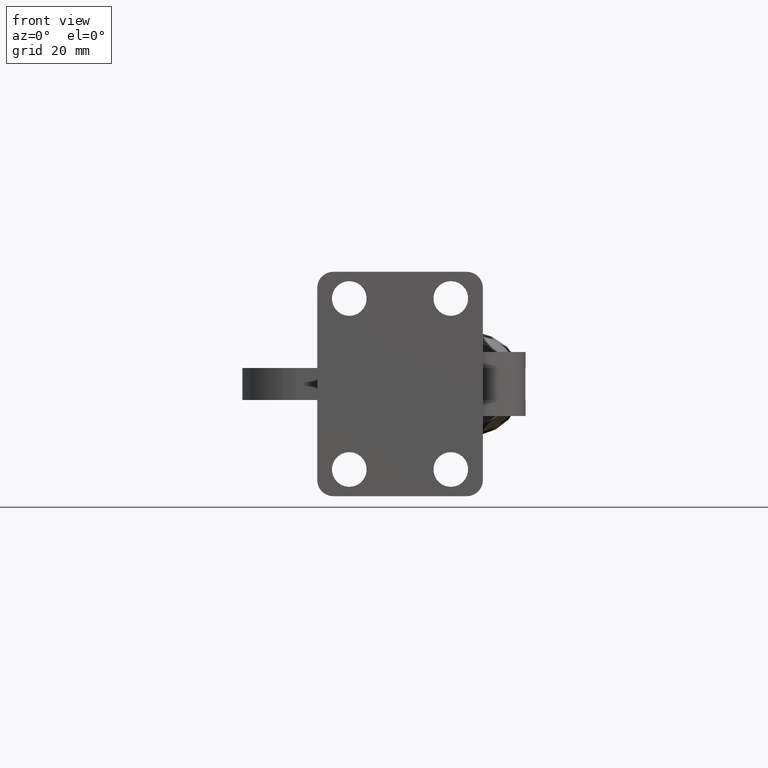
[diagram: clean part render]
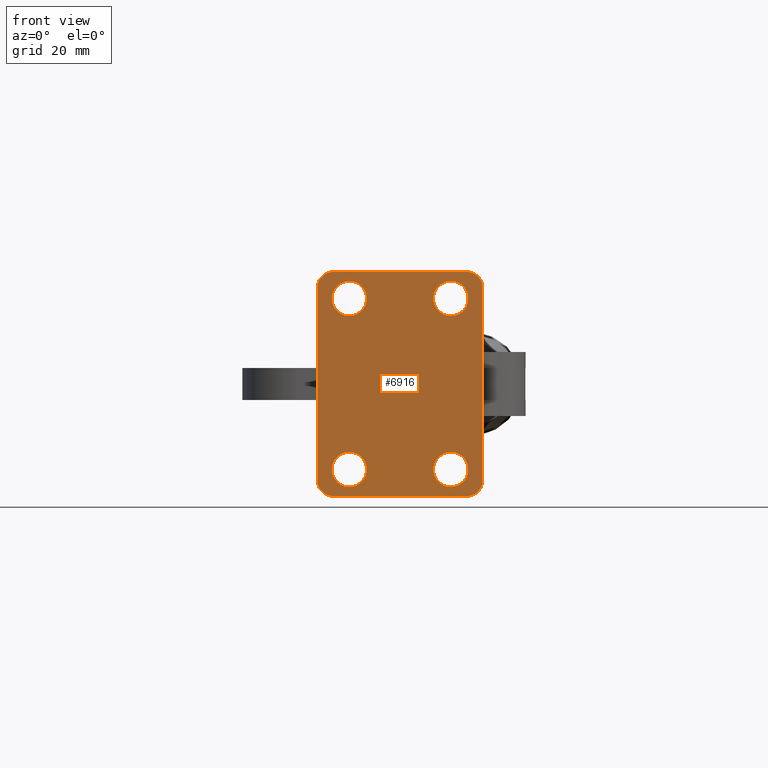
[diagram: same view with one face highlighted and labeled with its STEP entity id]
A machine part, front view. The second image highlights one B-rep face of the part: STEP entity #6916.
In plain terms, the highlighted planar face has unit normal (0, 1, 0).
Its self-contained STEP definition (entity closure, byte-faithful):
#56 = VERTEX_POINT ( 'NONE', #3336 ) ;
#85 = EDGE_CURVE ( 'NONE', #5143, #4911, #1470, .T. ) ;
#91 = VECTOR ( 'NONE', #2775, 1000.000000000000000 ) ;
#110 = DIRECTION ( 'NONE',  ( 0.0000000000000000000, 1.000000000000000000, 0.0000000000000000000 ) ) ;
#118 = DIRECTION ( 'NONE',  ( 1.156482317317871700E-015, 0.0000000000000000000, 1.000000000000000000 ) ) ;
#252 = CARTESIAN_POINT ( 'NONE',  ( 13.00000000000006000, -13.00000000000009900, 21.00000000000000000 ) ) ;
#363 = EDGE_CURVE ( 'NONE', #1163, #6819, #8662, .T. ) ;
#669 = DIRECTION ( 'NONE',  ( 0.0000000000000000000, 1.000000000000000000, 0.0000000000000000000 ) ) ;
#670 = AXIS2_PLACEMENT_3D ( 'NONE', #6953, #2791, #7660 ) ;
#677 = DIRECTION ( 'NONE',  ( -0.0000000000000000000, -1.000000000000000000, -0.0000000000000000000 ) ) ;
#707 = CARTESIAN_POINT ( 'NONE',  ( -8.999999999999939600, -13.00000000000009900, -16.00000000000000000 ) ) ;
#790 = EDGE_CURVE ( 'NONE', #6478, #2843, #7220, .T. ) ;
#885 = FACE_OUTER_BOUND ( 'NONE', #1181, .T. ) ;
#1057 = EDGE_LOOP ( 'NONE', ( #2701, #6779 ) ) ;
#1163 = VERTEX_POINT ( 'NONE', #5864 ) ;
#1179 = ORIENTED_EDGE ( 'NONE', *, *, #4549, .T. ) ;
#1181 = EDGE_LOOP ( 'NONE', ( #7128, #5176, #8734, #5641, #7429, #6761, #5778, #1556 ) ) ;
#1193 = DIRECTION ( 'NONE',  ( 0.0000000000000000000, 1.000000000000000000, 0.0000000000000000000 ) ) ;
#1237 = DIRECTION ( 'NONE',  ( 0.0000000000000000000, 1.000000000000000000, 0.0000000000000000000 ) ) ;
#1252 = EDGE_LOOP ( 'NONE', ( #2189, #1179 ) ) ;
#1278 = VECTOR ( 'NONE', #2884, 1000.000000000000000 ) ;
#1422 = DIRECTION ( 'NONE',  ( 0.0000000000000000000, 0.0000000000000000000, 1.000000000000000000 ) ) ;
#1470 = CIRCLE ( 'NONE', #5904, 3.249999999999999600 ) ;
#1508 = VERTEX_POINT ( 'NONE', #8281 ) ;
#1556 = ORIENTED_EDGE ( 'NONE', *, *, #6621, .T. ) ;
#1735 = CARTESIAN_POINT ( 'NONE',  ( 10.00000000000005900, -13.00000000000009900, 12.75000000000000200 ) ) ;
#1861 = CARTESIAN_POINT ( 'NONE',  ( -8.999999999999939600, -13.00000000000009900, 19.25000000000000000 ) ) ;
#1997 = CARTESIAN_POINT ( 'NONE',  ( 10.00000000000005900, -13.00000000000009900, 16.00000000000000000 ) ) ;
#2046 = CARTESIAN_POINT ( 'NONE',  ( -14.99999999999994000, -13.00000000000009900, -20.99999999999998900 ) ) ;
#2189 = ORIENTED_EDGE ( 'NONE', *, *, #363, .T. ) ;
#2229 = VERTEX_POINT ( 'NONE', #7188 ) ;
#2238 = VECTOR ( 'NONE', #7291, 1000.000000000000000 ) ;
#2261 = VERTEX_POINT ( 'NONE', #4530 ) ;
#2429 = AXIS2_PLACEMENT_3D ( 'NONE', #4866, #669, #5570 ) ;
#2482 = EDGE_CURVE ( 'NONE', #5542, #4430, #2608, .T. ) ;
#2604 = EDGE_CURVE ( 'NONE', #7831, #2229, #5682, .T. ) ;
#2608 = CIRCLE ( 'NONE', #5979, 3.249999999999999600 ) ;
#2654 = EDGE_CURVE ( 'NONE', #56, #6006, #7495, .T. ) ;
#2700 = DIRECTION ( 'NONE',  ( 0.0000000000000000000, 0.0000000000000000000, 1.000000000000000000 ) ) ;
#2701 = ORIENTED_EDGE ( 'NONE', *, *, #7433, .T. ) ;
#2744 = FACE_BOUND ( 'NONE', #3917, .T. ) ;
#2775 = DIRECTION ( 'NONE',  ( -0.0000000000000000000, -0.0000000000000000000, -1.000000000000000000 ) ) ;
#2791 = DIRECTION ( 'NONE',  ( 0.0000000000000000000, 1.000000000000000000, 0.0000000000000000000 ) ) ;
#2843 = VERTEX_POINT ( 'NONE', #252 ) ;
#2884 = DIRECTION ( 'NONE',  ( -1.000000000000000000, -0.0000000000000000000, -0.0000000000000000000 ) ) ;
#3035 = DIRECTION ( 'NONE',  ( -0.0000000000000000000, -1.000000000000000000, -0.0000000000000000000 ) ) ;
#3103 = CARTESIAN_POINT ( 'NONE',  ( -8.999999999999939600, -13.00000000000009900, -19.25000000000000000 ) ) ;
#3253 = ORIENTED_EDGE ( 'NONE', *, *, #8872, .T. ) ;
#3291 = CIRCLE ( 'NONE', #6112, 2.999999999999999100 ) ;
#3336 = CARTESIAN_POINT ( 'NONE',  ( -14.99999999999994000, -13.00000000000009900, 18.00000000000000400 ) ) ;
#3389 = CARTESIAN_POINT ( 'NONE',  ( 10.00000000000005900, -13.00000000000009900, 16.00000000000000000 ) ) ;
#3525 = CARTESIAN_POINT ( 'NONE',  ( -11.99999999999994100, -13.00000000000009900, -18.00000000000000400 ) ) ;
#3643 = EDGE_CURVE ( 'NONE', #2843, #2261, #3794, .T. ) ;
#3794 = LINE ( 'NONE', #6365, #1278 ) ;
#3811 = VECTOR ( 'NONE', #6932, 1000.000000000000000 ) ;
#3812 = AXIS2_PLACEMENT_3D ( 'NONE', #3992, #8886, #4706 ) ;
#3829 = ORIENTED_EDGE ( 'NONE', *, *, #7028, .T. ) ;
#3845 = CARTESIAN_POINT ( 'NONE',  ( -8.999999999999939600, -13.00000000000009900, 12.75000000000000200 ) ) ;
#3917 = EDGE_LOOP ( 'NONE', ( #4826, #3253 ) ) ;
#3992 = CARTESIAN_POINT ( 'NONE',  ( 10.00000000000005900, -13.00000000000009900, -16.00000000000000000 ) ) ;
#4095 = DIRECTION ( 'NONE',  ( 0.0000000000000000000, 0.0000000000000000000, 1.000000000000000000 ) ) ;
#4228 = DIRECTION ( 'NONE',  ( 0.0000000000000000000, 0.0000000000000000000, 1.000000000000000000 ) ) ;
#4301 = CARTESIAN_POINT ( 'NONE',  ( -8.999999999999939600, -13.00000000000009900, 16.00000000000000000 ) ) ;
#4342 = ORIENTED_EDGE ( 'NONE', *, *, #85, .T. ) ;
#4410 = AXIS2_PLACEMENT_3D ( 'NONE', #4301, #110, #5006 ) ;
#4430 = VERTEX_POINT ( 'NONE', #1735 ) ;
#4435 = EDGE_CURVE ( 'NONE', #1508, #6478, #7573, .T. ) ;
#4497 = CIRCLE ( 'NONE', #6235, 3.249999999999999600 ) ;
#4511 = AXIS2_PLACEMENT_3D ( 'NONE', #1997, #6858, #2700 ) ;
#4530 = CARTESIAN_POINT ( 'NONE',  ( -11.99999999999994100, -13.00000000000009900, 21.00000000000000000 ) ) ;
#4544 = CIRCLE ( 'NONE', #4410, 3.249999999999999600 ) ;
#4549 = EDGE_CURVE ( 'NONE', #6819, #1163, #7132, .T. ) ;
#4611 = FACE_BOUND ( 'NONE', #1252, .T. ) ;
#4706 = DIRECTION ( 'NONE',  ( 0.0000000000000000000, 0.0000000000000000000, 1.000000000000000000 ) ) ;
#4826 = ORIENTED_EDGE ( 'NONE', *, *, #2482, .T. ) ;
#4866 = CARTESIAN_POINT ( 'NONE',  ( -8.999999999999939600, -13.00000000000009900, 16.00000000000000000 ) ) ;
#4872 = CARTESIAN_POINT ( 'NONE',  ( 13.00000000000006200, -13.00000000000009900, -18.00000000000000400 ) ) ;
#4911 = VERTEX_POINT ( 'NONE', #8975 ) ;
#5006 = DIRECTION ( 'NONE',  ( 0.0000000000000000000, 0.0000000000000000000, 1.000000000000000000 ) ) ;
#5059 = EDGE_CURVE ( 'NONE', #8021, #8115, #4544, .T. ) ;
#5060 = CARTESIAN_POINT ( 'NONE',  ( 10.00000000000005900, -13.00000000000009900, -19.25000000000000400 ) ) ;
#5120 = AXIS2_PLACEMENT_3D ( 'NONE', #7200, #3035, #7911 ) ;
#5143 = VERTEX_POINT ( 'NONE', #3103 ) ;
#5176 = ORIENTED_EDGE ( 'NONE', *, *, #790, .T. ) ;
#5387 = DIRECTION ( 'NONE',  ( 0.0000000000000000000, 0.0000000000000000000, 1.000000000000000000 ) ) ;
#5500 = EDGE_LOOP ( 'NONE', ( #3829, #4342 ) ) ;
#5506 = CARTESIAN_POINT ( 'NONE',  ( -11.99999999999994100, -13.00000000000009900, -20.99999999999998900 ) ) ;
#5542 = VERTEX_POINT ( 'NONE', #7133 ) ;
#5570 = DIRECTION ( 'NONE',  ( 0.0000000000000000000, 0.0000000000000000000, 1.000000000000000000 ) ) ;
#5577 = DIRECTION ( 'NONE',  ( 0.0000000000000000000, 0.0000000000000000000, 1.000000000000000000 ) ) ;
#5614 = DIRECTION ( 'NONE',  ( 0.0000000000000000000, 1.000000000000000000, 0.0000000000000000000 ) ) ;
#5641 = ORIENTED_EDGE ( 'NONE', *, *, #7194, .T. ) ;
#5682 = LINE ( 'NONE', #2046, #3811 ) ;
#5778 = ORIENTED_EDGE ( 'NONE', *, *, #2604, .T. ) ;
#5864 = CARTESIAN_POINT ( 'NONE',  ( 10.00000000000005900, -13.00000000000009900, -12.74999999999999800 ) ) ;
#5904 = AXIS2_PLACEMENT_3D ( 'NONE', #6088, #1193, #5387 ) ;
#5979 = AXIS2_PLACEMENT_3D ( 'NONE', #3389, #8261, #4095 ) ;
#6006 = VERTEX_POINT ( 'NONE', #7547 ) ;
#6088 = CARTESIAN_POINT ( 'NONE',  ( -8.999999999999939600, -13.00000000000009900, -16.00000000000000000 ) ) ;
#6112 = AXIS2_PLACEMENT_3D ( 'NONE', #4872, #677, #5577 ) ;
#6137 = DIRECTION ( 'NONE',  ( 0.0000000000000000000, 0.0000000000000000000, 1.000000000000000000 ) ) ;
#6140 = CIRCLE ( 'NONE', #8440, 2.999999999999999100 ) ;
#6235 = AXIS2_PLACEMENT_3D ( 'NONE', #707, #5614, #1422 ) ;
#6365 = CARTESIAN_POINT ( 'NONE',  ( -14.99999999999994000, -13.00000000000009900, 21.00000000000000000 ) ) ;
#6453 = FACE_BOUND ( 'NONE', #1057, .T. ) ;
#6478 = VERTEX_POINT ( 'NONE', #8163 ) ;
#6525 = CIRCLE ( 'NONE', #4511, 3.249999999999999600 ) ;
#6601 = CARTESIAN_POINT ( 'NONE',  ( 16.00000000000005300, -13.00000000000009900, -20.99999999999998900 ) ) ;
#6621 = EDGE_CURVE ( 'NONE', #2229, #1508, #3291, .T. ) ;
#6644 = CIRCLE ( 'NONE', #5120, 2.999999999999999100 ) ;
#6670 = EDGE_CURVE ( 'NONE', #6006, #7831, #6140, .T. ) ;
#6761 = ORIENTED_EDGE ( 'NONE', *, *, #6670, .T. ) ;
#6778 = CARTESIAN_POINT ( 'NONE',  ( -12.99999999999994000, -13.00000000000009900, -19.00000000000000000 ) ) ;
#6779 = ORIENTED_EDGE ( 'NONE', *, *, #5059, .T. ) ;
#6819 = VERTEX_POINT ( 'NONE', #5060 ) ;
#6858 = DIRECTION ( 'NONE',  ( 0.0000000000000000000, 1.000000000000000000, 0.0000000000000000000 ) ) ;
#6916 = ADVANCED_FACE ( 'NONE', ( #8528, #2744, #6453, #4611, #885 ), #8202, .F. ) ;
#6932 = DIRECTION ( 'NONE',  ( 1.000000000000000000, 0.0000000000000000000, 0.0000000000000000000 ) ) ;
#6953 = CARTESIAN_POINT ( 'NONE',  ( 10.00000000000005900, -13.00000000000009900, -16.00000000000000000 ) ) ;
#7028 = EDGE_CURVE ( 'NONE', #4911, #5143, #4497, .T. ) ;
#7128 = ORIENTED_EDGE ( 'NONE', *, *, #4435, .T. ) ;
#7132 = CIRCLE ( 'NONE', #3812, 3.250000000000002700 ) ;
#7133 = CARTESIAN_POINT ( 'NONE',  ( 10.00000000000005900, -13.00000000000009900, 19.25000000000000000 ) ) ;
#7188 = CARTESIAN_POINT ( 'NONE',  ( 13.00000000000006400, -13.00000000000009900, -20.99999999999998900 ) ) ;
#7194 = EDGE_CURVE ( 'NONE', #2261, #56, #6644, .T. ) ;
#7200 = CARTESIAN_POINT ( 'NONE',  ( -11.99999999999994100, -13.00000000000009900, 18.00000000000000400 ) ) ;
#7220 = CIRCLE ( 'NONE', #8938, 2.999999999999999100 ) ;
#7291 = DIRECTION ( 'NONE',  ( 0.0000000000000000000, 0.0000000000000000000, 1.000000000000000000 ) ) ;
#7429 = ORIENTED_EDGE ( 'NONE', *, *, #2654, .T. ) ;
#7433 = EDGE_CURVE ( 'NONE', #8115, #8021, #7536, .T. ) ;
#7495 = LINE ( 'NONE', #9066, #91 ) ;
#7536 = CIRCLE ( 'NONE', #2429, 3.249999999999999600 ) ;
#7547 = CARTESIAN_POINT ( 'NONE',  ( -14.99999999999994000, -13.00000000000009900, -18.00000000000000400 ) ) ;
#7573 = LINE ( 'NONE', #6601, #2238 ) ;
#7660 = DIRECTION ( 'NONE',  ( 0.0000000000000000000, 0.0000000000000000000, 1.000000000000000000 ) ) ;
#7687 = CARTESIAN_POINT ( 'NONE',  ( 13.00000000000006000, -13.00000000000009900, 18.00000000000000700 ) ) ;
#7831 = VERTEX_POINT ( 'NONE', #5506 ) ;
#7911 = DIRECTION ( 'NONE',  ( 0.0000000000000000000, 0.0000000000000000000, 1.000000000000000000 ) ) ;
#8021 = VERTEX_POINT ( 'NONE', #3845 ) ;
#8115 = VERTEX_POINT ( 'NONE', #1861 ) ;
#8127 = DIRECTION ( 'NONE',  ( -0.0000000000000000000, -1.000000000000000000, -0.0000000000000000000 ) ) ;
#8163 = CARTESIAN_POINT ( 'NONE',  ( 16.00000000000005300, -13.00000000000009900, 18.00000000000000400 ) ) ;
#8202 = PLANE ( 'NONE',  #8745 ) ;
#8261 = DIRECTION ( 'NONE',  ( 0.0000000000000000000, 1.000000000000000000, 0.0000000000000000000 ) ) ;
#8281 = CARTESIAN_POINT ( 'NONE',  ( 16.00000000000005300, -13.00000000000009900, -18.00000000000000400 ) ) ;
#8402 = DIRECTION ( 'NONE',  ( -0.0000000000000000000, -1.000000000000000000, -0.0000000000000000000 ) ) ;
#8440 = AXIS2_PLACEMENT_3D ( 'NONE', #3525, #8402, #4228 ) ;
#8528 = FACE_BOUND ( 'NONE', #5500, .T. ) ;
#8662 = CIRCLE ( 'NONE', #670, 3.250000000000002700 ) ;
#8734 = ORIENTED_EDGE ( 'NONE', *, *, #3643, .T. ) ;
#8745 = AXIS2_PLACEMENT_3D ( 'NONE', #6778, #1237, #6137 ) ;
#8872 = EDGE_CURVE ( 'NONE', #4430, #5542, #6525, .T. ) ;
#8886 = DIRECTION ( 'NONE',  ( 0.0000000000000000000, 1.000000000000000000, 0.0000000000000000000 ) ) ;
#8938 = AXIS2_PLACEMENT_3D ( 'NONE', #7687, #8127, #118 ) ;
#8975 = CARTESIAN_POINT ( 'NONE',  ( -8.999999999999939600, -13.00000000000009900, -12.75000000000000200 ) ) ;
#9066 = CARTESIAN_POINT ( 'NONE',  ( -14.99999999999994000, -13.00000000000009900, -20.99999999999998900 ) ) ;